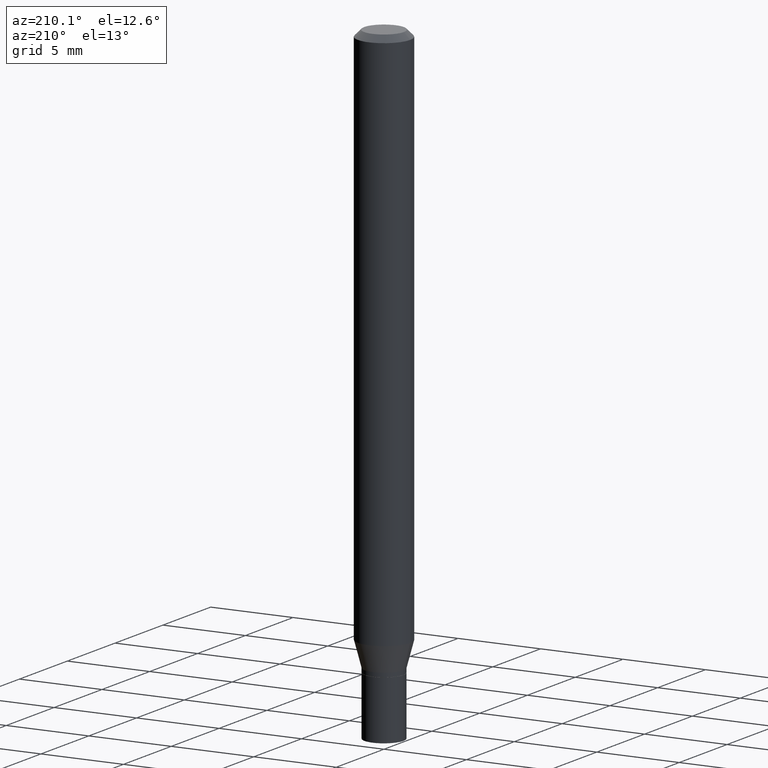
[diagram: clean part render]
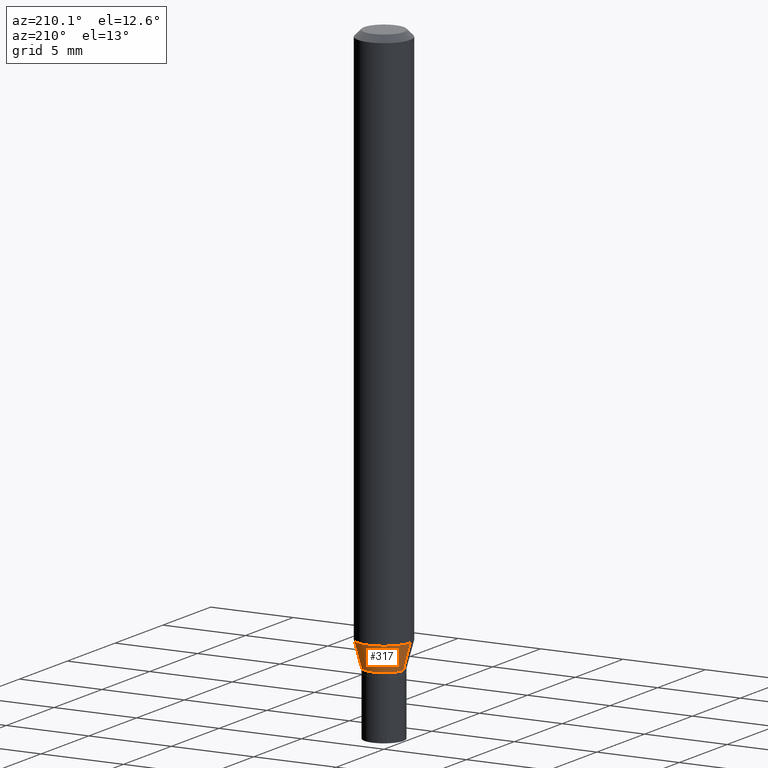
[diagram: same view with one face highlighted and labeled with its STEP entity id]
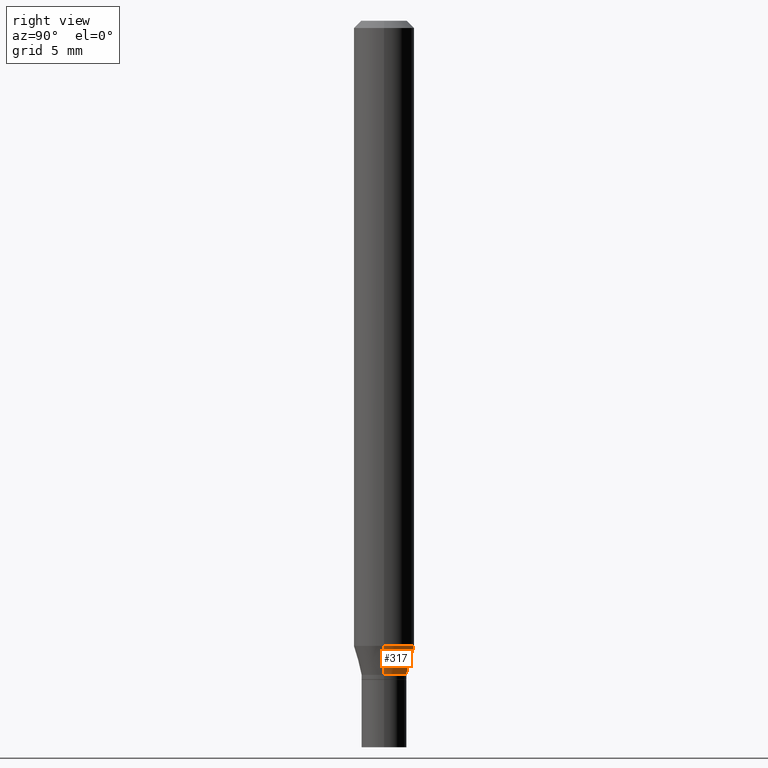
[diagram: same view with one face highlighted and labeled with its STEP entity id]
A machine part, auxiliary view. The second image highlights one B-rep face of the part: STEP entity #317.
A second angle (right view) of the same face is appended — the face is thin or edge-on in the first view.
In plain terms, the highlighted conical surface has half-angle 15 deg.
Its self-contained STEP definition (entity closure, byte-faithful):
#5 = CIRCLE ( 'NONE', #218, 0.06250000000000000000 ) ;
#19 = LINE ( 'NONE', #323, #158 ) ;
#22 = CONICAL_SURFACE ( 'NONE', #282, 0.04649999999999993722, 0.2617993877991500740 ) ;
#29 = LINE ( 'NONE', #157, #286 ) ;
#39 = VERTEX_POINT ( 'NONE', #288 ) ;
#52 = DIRECTION ( 'NONE',  ( -2.445468806185136597E-29, 3.491481338843145583E-15, 1.000000000000000000 ) ) ;
#61 = EDGE_CURVE ( 'NONE', #128, #227, #125, .T. ) ;
#91 = DIRECTION ( 'NONE',  ( 0.2588190451025213501, 1.565188264969621968E-15, 0.9659258262890682012 ) ) ;
#95 = DIRECTION ( 'NONE',  ( 1.000000000000000000, -6.982962677686262766E-15, 0.000000000000000000 ) ) ;
#114 = ORIENTED_EDGE ( 'NONE', *, *, #61, .T. ) ;
#120 = FACE_OUTER_BOUND ( 'NONE', #414, .T. ) ;
#124 = CARTESIAN_POINT ( 'NONE',  ( 3.302605622753026759E-29, -4.715245548107668099E-15, -1.350500000000000034 ) ) ;
#125 = CIRCLE ( 'NONE', #364, 0.04649999999999993722 ) ;
#128 = VERTEX_POINT ( 'NONE', #356 ) ;
#141 = ORIENTED_EDGE ( 'NONE', *, *, #262, .F. ) ;
#157 = CARTESIAN_POINT ( 'NONE',  ( -0.04649999999999993722, -4.384843175979221614E-15, -1.350500000000000034 ) ) ;
#158 = VECTOR ( 'NONE', #91, 39.37007874015747433 ) ;
#166 = EDGE_CURVE ( 'NONE', #128, #39, #19, .T. ) ;
#186 = DIRECTION ( 'NONE',  ( -0.2588190451025213501, 5.211531920934551042E-15, 0.9659258262890682012 ) ) ;
#198 = CARTESIAN_POINT ( 'NONE',  ( -0.06250000000000000000, -4.062670166253745488E-15, -1.290787187078897835 ) ) ;
#217 = ORIENTED_EDGE ( 'NONE', *, *, #325, .T. ) ;
#218 = AXIS2_PLACEMENT_3D ( 'NONE', #316, #418, #95 ) ;
#224 = CARTESIAN_POINT ( 'NONE',  ( 3.302605622753026759E-29, -4.715245548107668099E-15, -1.350500000000000034 ) ) ;
#227 = VERTEX_POINT ( 'NONE', #331 ) ;
#262 = EDGE_CURVE ( 'NONE', #39, #403, #5, .T. ) ;
#269 = DIRECTION ( 'NONE',  ( 1.000000000000000000, -6.982962677686269866E-15, 0.000000000000000000 ) ) ;
#282 = AXIS2_PLACEMENT_3D ( 'NONE', #124, #52, #269 ) ;
#286 = VECTOR ( 'NONE', #186, 39.37007874015747433 ) ;
#288 = CARTESIAN_POINT ( 'NONE',  ( 0.06250000000000000000, -4.943194543459198984E-15, -1.290787187078897835 ) ) ;
#316 = CARTESIAN_POINT ( 'NONE',  ( 3.156579801424902846E-29, -4.506759376103808104E-15, -1.290787187078897835 ) ) ;
#317 = ADVANCED_FACE ( 'NONE', ( #120 ), #22, .T. ) ;
#323 = CARTESIAN_POINT ( 'NONE',  ( 0.04649999999999993722, -5.039953312620078807E-15, -1.350500000000000034 ) ) ;
#325 = EDGE_CURVE ( 'NONE', #227, #403, #29, .T. ) ;
#331 = CARTESIAN_POINT ( 'NONE',  ( -0.04649999999999993722, -4.223756671116483156E-15, -1.350500000000000034 ) ) ;
#341 = ORIENTED_EDGE ( 'NONE', *, *, #166, .F. ) ;
#356 = CARTESIAN_POINT ( 'NONE',  ( 0.04649999999999993722, -5.039953312620078807E-15, -1.350500000000000034 ) ) ;
#364 = AXIS2_PLACEMENT_3D ( 'NONE', #224, #445, #404 ) ;
#403 = VERTEX_POINT ( 'NONE', #198 ) ;
#404 = DIRECTION ( 'NONE',  ( 1.000000000000000000, -6.982962677686269866E-15, 0.000000000000000000 ) ) ;
#414 = EDGE_LOOP ( 'NONE', ( #114, #217, #141, #341 ) ) ;
#418 = DIRECTION ( 'NONE',  ( -2.445468806185136597E-29, 3.491481338843145583E-15, 1.000000000000000000 ) ) ;
#445 = DIRECTION ( 'NONE',  ( -2.445468806185136597E-29, 3.491481338843145583E-15, 1.000000000000000000 ) ) ;